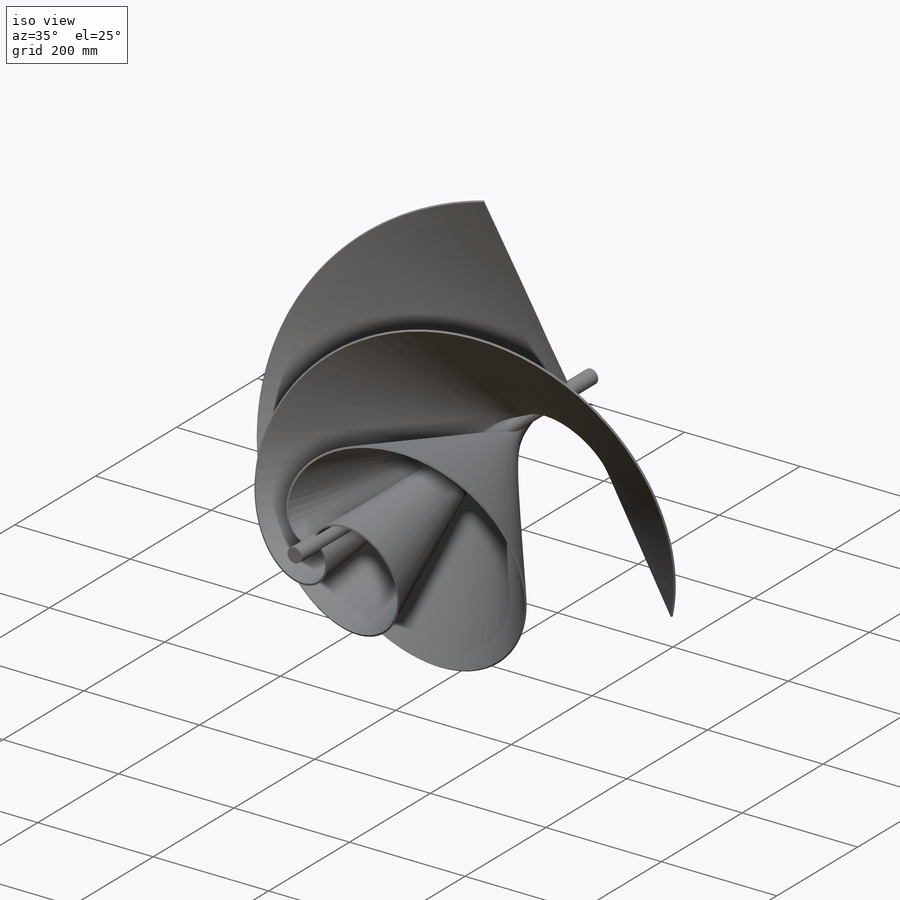
[diagram: iso view]
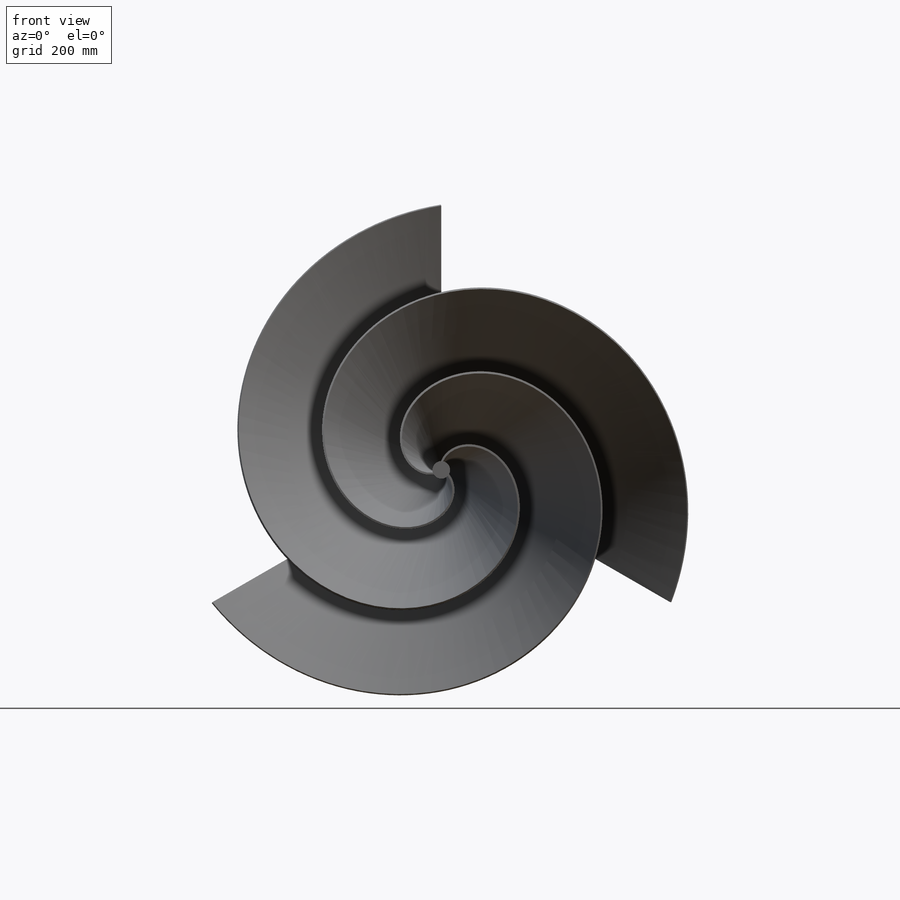
[diagram: front view]
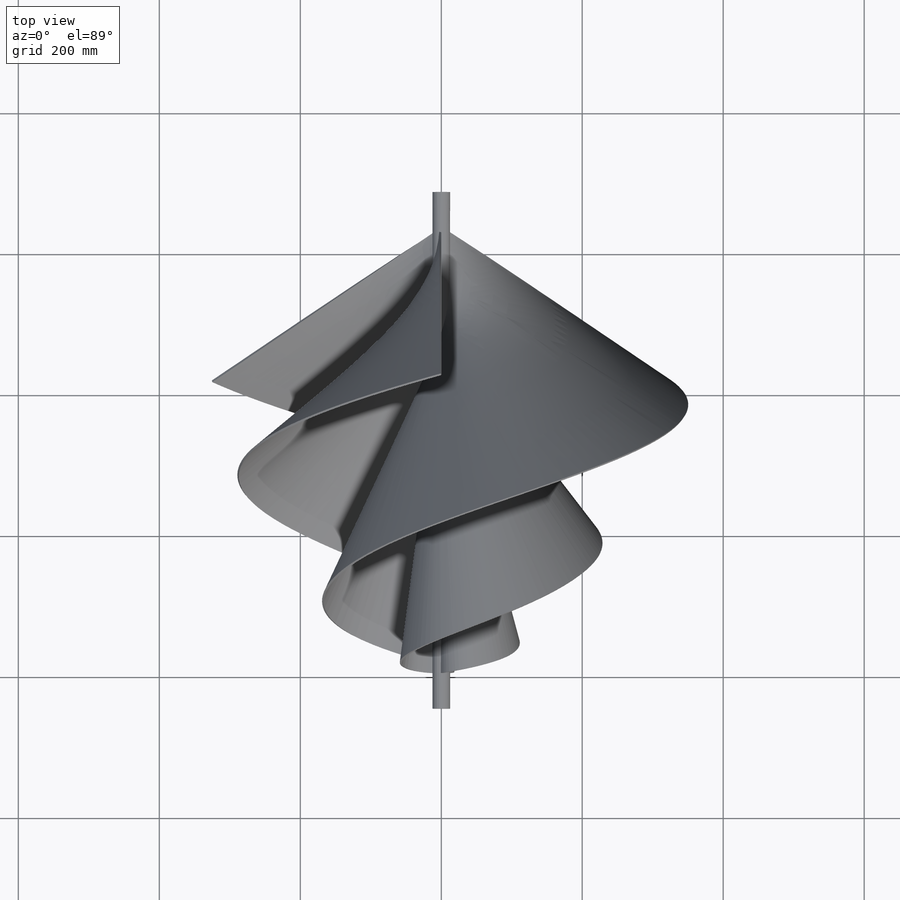
[diagram: top view]
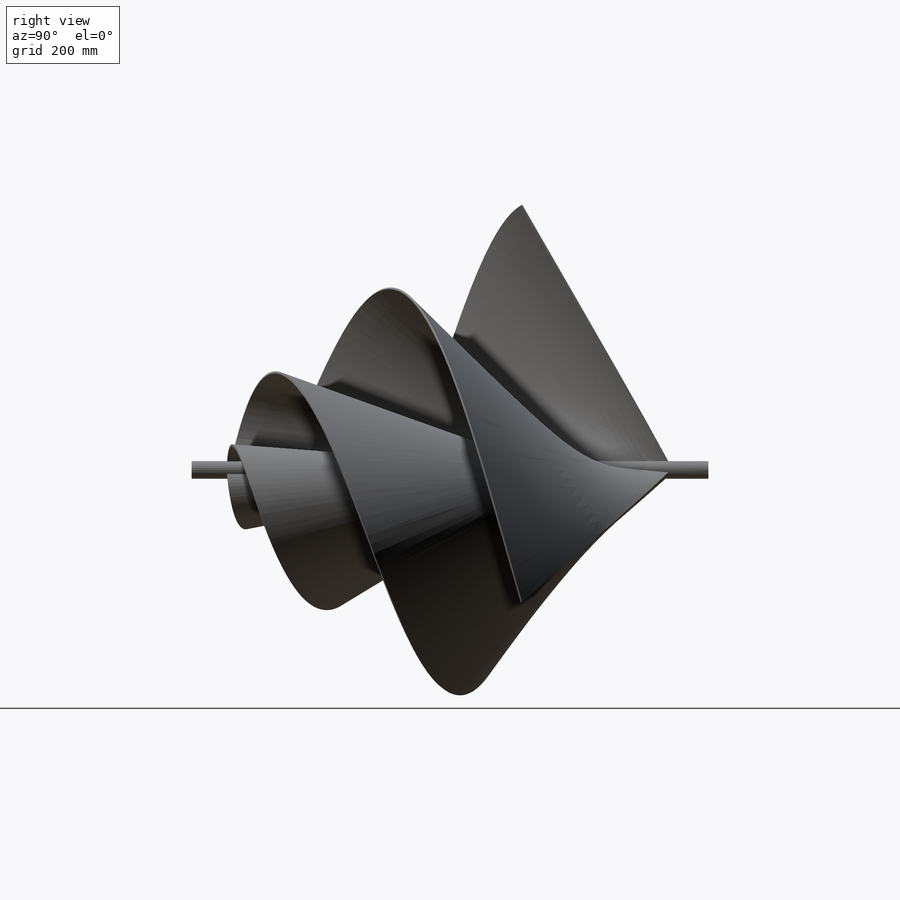
[diagram: right view]
SOLIDWORKS PART (.sldprt)
format: sldprt  version: not decoded by parser v0  size: 690,176 bytes
history: native  units: mm
features: sketch x7, material x1, helix x1, surface_op x1, pattern_circular x1, extrude x1 (+14 scaffold rows collapsed)
feature tree (26):
  scaffold x14  (default folders/planes/origin — collapsed)
  material  "Material <not specified>"
  sketch  "Sketch1"  dims[c1.D1=200.0mm c1.D2=200.0mm c2.D2=60.0deg c2.D3=375.0mm c2.D4=~433.012702mm c3.D4=30.0deg]
  sketch  "Sketch2"
  sketch  "Sketch3"
  helix  "Helix/Spiral1"  Pitch=375mm
  sketch  "Sketch4"
  surface_op  "Surface-Extrude1"
  sketch  "3DSketch1"
  sketch  "Sketch5"  dims[c1.D1=15.0mm c2.D1=3.0mm]
  pattern_circular  "CirPattern1"  Count=3 Angle=360deg
  sketch  "Sketch6"  dims[D1=25.0mm]
  extrude  "Boss-Extrude1"  Depth=50mm
decode coverage: 6 of 11 modeling features carry decoded parameters
note: ~ marks probable driven/reference dimensions
note: suppression state not decoded; provenance and decode notes live in map.json
